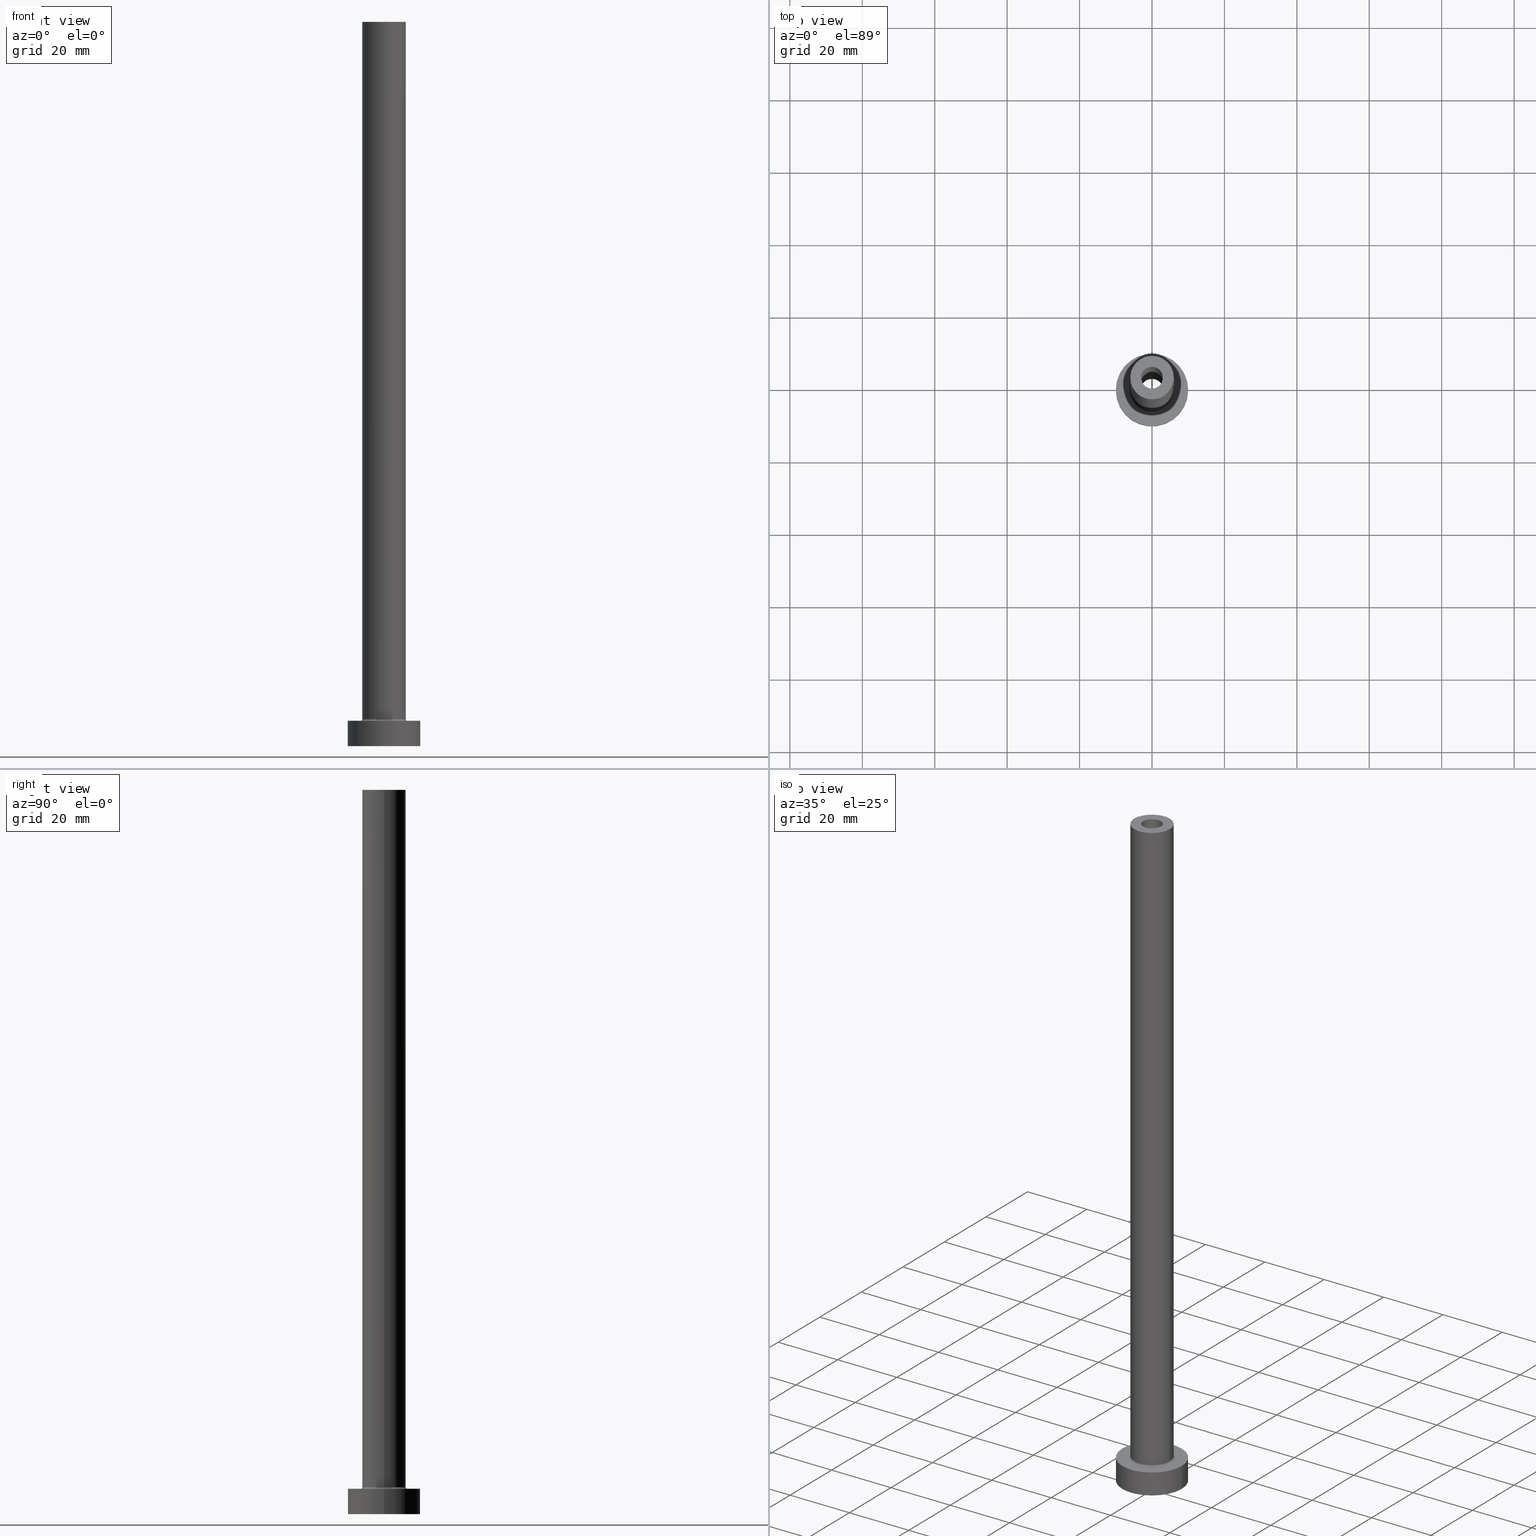
[diagram: canonical four-view strip — front | top / right | iso, engineering-drawing reading convention]
A machine part, canonical four-view strip (front | top / right | iso — engineering-drawing reading convention). The complete STEP part file that produces these views, byte-faithful:
ISO-10303-21;
HEADER;
FILE_DESCRIPTION (( 'STEP AP203' ),
    '1' );
FILE_NAME ('dcb5.STEP',
    '2023-02-13T15:01:46',
    ( '' ),
    ( '' ),
    'SwSTEP 2.0',
    'SolidWorks 2019',
    '' );
FILE_SCHEMA (( 'CONFIG_CONTROL_DESIGN' ));
ENDSEC;

DATA;
#1 = ORIENTED_EDGE ( 'NONE', *, *, #74, .T. ) ;
#2 = DIRECTION ( 'NONE',  ( 0.000000000000000000, 0.000000000000000000, 1.000000000000000000 ) ) ;
#3 = VERTEX_POINT ( 'NONE', #67 ) ;
#4 = CARTESIAN_POINT ( 'NONE',  ( 3.000000000000000444, 3.673940397442059868E-16, 200.0000000000000000 ) ) ;
#5 = EDGE_CURVE ( 'NONE', #3, #417, #295, .T. ) ;
#6 = AXIS2_PLACEMENT_3D ( 'NONE', #402, #233, #167 ) ;
#7 = CARTESIAN_POINT ( 'NONE',  ( 0.000000000000000000, 0.000000000000000000, 200.0000000000000000 ) ) ;
#8 = FACE_BOUND ( 'NONE', #240, .T. ) ;
#9 = ORIENTED_EDGE ( 'NONE', *, *, #163, .F. ) ;
#10 = COORDINATED_UNIVERSAL_TIME_OFFSET ( 1, 0, .AHEAD. ) ;
#11 = AXIS2_PLACEMENT_3D ( 'NONE', #328, #126, #219 ) ;
#12 = AXIS2_PLACEMENT_3D ( 'NONE', #168, #141, #275 ) ;
#13 = VERTEX_POINT ( 'NONE', #458 ) ;
#14 = DATE_AND_TIME ( #261, #288 ) ;
#15 = ORIENTED_EDGE ( 'NONE', *, *, #70, .F. ) ;
#16 = EDGE_LOOP ( 'NONE', ( #183, #306, #404, #1 ) ) ;
#17 = CARTESIAN_POINT ( 'NONE',  ( -10.00000000000000000, 0.000000000000000000, 7.000000000000000000 ) ) ;
#18 = PLANE ( 'NONE',  #160 ) ;
#19 = DIRECTION ( 'NONE',  ( 0.000000000000000000, 0.000000000000000000, -1.000000000000000000 ) ) ;
#20 = CALENDAR_DATE ( 2023, 13, 2 ) ;
#21 = ORIENTED_EDGE ( 'NONE', *, *, #386, .F. ) ;
#22 = CIRCLE ( 'NONE', #222, 3.150000000000000355 ) ;
#23 = LINE ( 'NONE', #29, #365 ) ;
#24 = ORIENTED_EDGE ( 'NONE', *, *, #237, .T. ) ;
#25 = DIRECTION ( 'NONE',  ( 0.000000000000000000, 0.000000000000000000, -1.000000000000000000 ) ) ;
#26 = CYLINDRICAL_SURFACE ( 'NONE', #28, 3.150000000000000355 ) ;
#27 = APPROVAL ( #403, 'NEUR�EN�' ) ;
#28 = AXIS2_PLACEMENT_3D ( 'NONE', #302, #25, #93 ) ;
#29 = CARTESIAN_POINT ( 'NONE',  ( -3.150000000000000355, 0.000000000000000000, 163.9095454429505594 ) ) ;
#30 = EDGE_LOOP ( 'NONE', ( #9, #121 ) ) ;
#31 = APPLICATION_PROTOCOL_DEFINITION ( 'international standard', 'config_control_design', 1994, #436 ) ;
#32 = DIRECTION ( 'NONE',  ( 0.000000000000000000, 0.000000000000000000, 1.000000000000000000 ) ) ;
#33 = CARTESIAN_POINT ( 'NONE',  ( 0.000000000000000000, 0.000000000000000000, 155.0000000000000284 ) ) ;
#34 = CC_DESIGN_DATE_AND_TIME_ASSIGNMENT ( #293, #94, ( #52 ) ) ;
#35 = CYLINDRICAL_SURFACE ( 'NONE', #409, 6.000000000000000888 ) ;
#36 = AXIS2_PLACEMENT_3D ( 'NONE', #455, #271, #238 ) ;
#37 = APPROVAL_PERSON_ORGANIZATION ( #438, #103, #229 ) ;
#38 = VERTEX_POINT ( 'NONE', #146 ) ;
#39 = CARTESIAN_POINT ( 'NONE',  ( 0.000000000000000000, 0.000000000000000000, 7.000000000000000000 ) ) ;
#40 = CYLINDRICAL_SURFACE ( 'NONE', #432, 6.000000000000000888 ) ;
#41 = LINE ( 'NONE', #128, #100 ) ;
#42 = CIRCLE ( 'NONE', #12, 6.500000000000000888 ) ;
#43 = CYLINDRICAL_SURFACE ( 'NONE', #389, 10.00000000000000000 ) ;
#44 = EDGE_LOOP ( 'NONE', ( #284, #213, #356, #210 ) ) ;
#45 = DIRECTION ( 'NONE',  ( 1.000000000000000000, 0.000000000000000000, -0.000000000000000000 ) ) ;
#46 = ORIENTED_EDGE ( 'NONE', *, *, #244, .F. ) ;
#47 = ORIENTED_EDGE ( 'NONE', *, *, #405, .T. ) ;
#48 = ADVANCED_FACE ( 'NONE', ( #206 ), #35, .T. ) ;
#49 = COORDINATED_UNIVERSAL_TIME_OFFSET ( 1, 0, .AHEAD. ) ;
#50 = VECTOR ( 'NONE', #369, 1000.000000000000000 ) ;
#51 = PERSON_AND_ORGANIZATION_ROLE ( 'design_supplier' ) ;
#52 = SECURITY_CLASSIFICATION ( '', '', #431 ) ;
#53 = ORIENTED_EDGE ( 'NONE', *, *, #145, .T. ) ;
#54 = PLANE ( 'NONE',  #199 ) ;
#55 = EDGE_LOOP ( 'NONE', ( #230, #24, #423, #416 ) ) ;
#56 = CARTESIAN_POINT ( 'NONE',  ( -3.150000000000000355, 0.000000000000000000, 0.000000000000000000 ) ) ;
#57 = COORDINATED_UNIVERSAL_TIME_OFFSET ( 1, 0, .AHEAD. ) ;
#58 = ORIENTED_EDGE ( 'NONE', *, *, #131, .T. ) ;
#59 = LINE ( 'NONE', #375, #397 ) ;
#60 = DIRECTION ( 'NONE',  ( 1.224646799147353207E-16, 1.000000000000000000, -0.000000000000000000 ) ) ;
#61 = ADVANCED_FACE ( 'NONE', ( #208, #425 ), #62, .F. ) ;
#62 = PLANE ( 'NONE',  #286 ) ;
#63 = CARTESIAN_POINT ( 'NONE',  ( 3.150000000000000355, 3.857637417314163182E-16, 0.000000000000000000 ) ) ;
#64 = CIRCLE ( 'NONE', #357, 6.000000000000000888 ) ;
#65 = CIRCLE ( 'NONE', #440, 6.500000000000000888 ) ;
#66 = CARTESIAN_POINT ( 'NONE',  ( 6.000000000000000888, 7.347880794884120722E-16, 200.0000000000000000 ) ) ;
#67 = CARTESIAN_POINT ( 'NONE',  ( 3.000000000000000444, 3.673940397442059868E-16, 155.0000000000000284 ) ) ;
#68 = CC_DESIGN_PERSON_AND_ORGANIZATION_ASSIGNMENT ( #137, #189, ( #399 ) ) ;
#69 = DIRECTION ( 'NONE',  ( 0.000000000000000000, 0.000000000000000000, -1.000000000000000000 ) ) ;
#70 = EDGE_CURVE ( 'NONE', #127, #3, #41, .T. ) ;
#71 = DIRECTION ( 'NONE',  ( 0.000000000000000000, 0.000000000000000000, -1.000000000000000000 ) ) ;
#72 = DIRECTION ( 'NONE',  ( -1.000000000000000000, 0.000000000000000000, 0.000000000000000000 ) ) ;
#73 = DIRECTION ( 'NONE',  ( -1.000000000000000000, 0.000000000000000000, 0.000000000000000000 ) ) ;
#74 = EDGE_CURVE ( 'NONE', #38, #81, #64, .T. ) ;
#75 = DIRECTION ( 'NONE',  ( 0.000000000000000000, 0.000000000000000000, -1.000000000000000000 ) ) ;
#76 = DIRECTION ( 'NONE',  ( -1.000000000000000000, 0.000000000000000000, 0.000000000000000000 ) ) ;
#77 = ORIENTED_EDGE ( 'NONE', *, *, #265, .F. ) ;
#78 = ADVANCED_FACE ( 'NONE', ( #323 ), #86, .T. ) ;
#79 = AXIS2_PLACEMENT_3D ( 'NONE', #268, #263, #99 ) ;
#80 = CARTESIAN_POINT ( 'NONE',  ( -6.000000000000000888, 0.000000000000000000, 200.0000000000000000 ) ) ;
#81 = VERTEX_POINT ( 'NONE', #257 ) ;
#82 = DIRECTION ( 'NONE',  ( 1.000000000000000000, 0.000000000000000000, 0.000000000000000000 ) ) ;
#83 = VERTEX_POINT ( 'NONE', #449 ) ;
#84 = APPROVAL_ROLE ( '' ) ;
#85 = ORIENTED_EDGE ( 'NONE', *, *, #170, .T. ) ;
#86 = CYLINDRICAL_SURFACE ( 'NONE', #353, 10.00000000000000000 ) ;
#87 = CALENDAR_DATE ( 2023, 13, 2 ) ;
#88 = EDGE_CURVE ( 'NONE', #81, #38, #132, .T. ) ;
#89 = CIRCLE ( 'NONE', #348, 3.000000000000000444 ) ;
#90 = LOCAL_TIME ( 16, 1, 46.00000000000000000, #395 ) ;
#91 = VERTEX_POINT ( 'NONE', #17 ) ;
#92 = DIRECTION ( 'NONE',  ( 1.000000000000000000, 0.000000000000000000, 0.000000000000000000 ) ) ;
#93 = DIRECTION ( 'NONE',  ( -1.000000000000000000, 0.000000000000000000, 0.000000000000000000 ) ) ;
#94 = DATE_TIME_ROLE ( 'classification_date' ) ;
#95 = CYLINDRICAL_SURFACE ( 'NONE', #332, 3.150000000000000355 ) ;
#96 = CALENDAR_DATE ( 2023, 13, 2 ) ;
#97 = VERTEX_POINT ( 'NONE', #441 ) ;
#98 = ORIENTED_EDGE ( 'NONE', *, *, #311, .T. ) ;
#99 = DIRECTION ( 'NONE',  ( 1.000000000000000000, 0.000000000000000000, 0.000000000000000000 ) ) ;
#100 = VECTOR ( 'NONE', #384, 1000.000000000000000 ) ;
#101 = CIRCLE ( 'NONE', #273, 10.00000000000000000 ) ;
#102 = CARTESIAN_POINT ( 'NONE',  ( 0.000000000000000000, 0.000000000000000000, 155.0000000000000284 ) ) ;
#103 = APPROVAL ( #338, 'NEUR�EN�' ) ;
#104 = ORIENTED_EDGE ( 'NONE', *, *, #195, .T. ) ;
#105 = CARTESIAN_POINT ( 'NONE',  ( 6.000000000000000888, 7.347880794884120722E-16, 200.0000000000000000 ) ) ;
#106 = DIRECTION ( 'NONE',  ( 0.000000000000000000, 0.000000000000000000, 1.000000000000000000 ) ) ;
#107 = CIRCLE ( 'NONE', #287, 0.5000000000000004441 ) ;
#108 = FACE_OUTER_BOUND ( 'NONE', #298, .T. ) ;
#109 = CC_DESIGN_APPROVAL ( #27, ( #334 ) ) ;
#110 = MECHANICAL_CONTEXT ( 'NONE', #436, 'mechanical' ) ;
#111 = EDGE_LOOP ( 'NONE', ( #299, #47 ) ) ;
#112 = ADVANCED_FACE ( 'NONE', ( #200, #290 ), #18, .T. ) ;
#113 = LOCAL_TIME ( 16, 1, 46.00000000000000000, #193 ) ;
#114 = CARTESIAN_POINT ( 'NONE',  ( -3.000000000000000444, 0.000000000000000000, 200.0000000000000000 ) ) ;
#115 = PRODUCT_DEFINITION ( 'NEZN�M�', '', #334, #157 ) ;
#116 = CARTESIAN_POINT ( 'NONE',  ( -6.000000000000000888, 0.000000000000000000, 200.0000000000000000 ) ) ;
#117 = DIRECTION ( 'NONE',  ( 1.000000000000000000, 0.000000000000000000, -0.000000000000000000 ) ) ;
#118 = CARTESIAN_POINT ( 'NONE',  ( 0.000000000000000000, 0.000000000000000000, 7.000000000000000000 ) ) ;
#119 = EDGE_CURVE ( 'NONE', #236, #253, #153, .T. ) ;
#120 = CARTESIAN_POINT ( 'NONE',  ( -10.00000000000000000, 0.000000000000000000, 0.000000000000000000 ) ) ;
#121 = ORIENTED_EDGE ( 'NONE', *, *, #143, .F. ) ;
#122 = AXIS2_PLACEMENT_3D ( 'NONE', #173, #192, #415 ) ;
#123 = LOCAL_TIME ( 16, 1, 46.00000000000000000, #49 ) ;
#124 = SHAPE_DEFINITION_REPRESENTATION ( #266, #437 ) ;
#125 = ORIENTED_EDGE ( 'NONE', *, *, #311, .F. ) ;
#126 = DIRECTION ( 'NONE',  ( 0.000000000000000000, 0.000000000000000000, 1.000000000000000000 ) ) ;
#127 = VERTEX_POINT ( 'NONE', #4 ) ;
#128 = CARTESIAN_POINT ( 'NONE',  ( 3.000000000000000444, 3.673940397442059868E-16, 200.0000000000000000 ) ) ;
#129 = CALENDAR_DATE ( 2023, 13, 2 ) ;
#130 = DIRECTION ( 'NONE',  ( 0.000000000000000000, 0.000000000000000000, 1.000000000000000000 ) ) ;
#131 = EDGE_CURVE ( 'NONE', #445, #187, #272, .T. ) ;
#132 = CIRCLE ( 'NONE', #179, 6.000000000000000888 ) ;
#133 = PERSON_AND_ORGANIZATION ( #312, #452 ) ;
#134 = CC_DESIGN_SECURITY_CLASSIFICATION ( #52, ( #334 ) ) ;
#135 = ORIENTED_EDGE ( 'NONE', *, *, #343, .T. ) ;
#136 = LINE ( 'NONE', #165, #50 ) ;
#137 = PERSON_AND_ORGANIZATION ( #312, #452 ) ;
#138 = DIRECTION ( 'NONE',  ( 1.000000000000000000, 0.000000000000000000, 0.000000000000000000 ) ) ;
#139 = ORIENTED_EDGE ( 'NONE', *, *, #5, .F. ) ;
#140 = CARTESIAN_POINT ( 'NONE',  ( 6.500000000000000888, 0.000000000000000000, 7.000000000000002665 ) ) ;
#141 = DIRECTION ( 'NONE',  ( -0.000000000000000000, -0.000000000000000000, -1.000000000000000000 ) ) ;
#142 = CARTESIAN_POINT ( 'NONE',  ( -6.500000000000000888, 7.960204194457796463E-16, 7.000000000000002665 ) ) ;
#143 = EDGE_CURVE ( 'NONE', #13, #387, #461, .T. ) ;
#144 = ORIENTED_EDGE ( 'NONE', *, *, #228, .F. ) ;
#145 = EDGE_CURVE ( 'NONE', #83, #417, #426, .T. ) ;
#146 = CARTESIAN_POINT ( 'NONE',  ( -6.000000000000000888, 0.000000000000000000, 7.500000000000007105 ) ) ;
#147 = ADVANCED_FACE ( 'NONE', ( #355 ), #40, .T. ) ;
#148 = CLOSED_SHELL ( 'NONE', ( #453, #349, #373, #147, #446, #78, #112, #61, #48, #292, #316, #327, #393, #443 ) ) ;
#149 = CIRCLE ( 'NONE', #36, 3.150000000000000355 ) ;
#150 = APPROVAL ( #363, 'NEUR�EN�' ) ;
#151 = ORIENTED_EDGE ( 'NONE', *, *, #88, .T. ) ;
#152 = DATE_TIME_ROLE ( 'creation_date' ) ;
#153 = CIRCLE ( 'NONE', #11, 3.150000000000000355 ) ;
#154 =( GEOMETRIC_REPRESENTATION_CONTEXT ( 3 ) GLOBAL_UNCERTAINTY_ASSIGNED_CONTEXT ( ( #303 ) ) GLOBAL_UNIT_ASSIGNED_CONTEXT ( ( #314, #380, #172 ) ) REPRESENTATION_CONTEXT ( 'NONE', 'WORKASPACE' ) );
#155 = ORIENTED_EDGE ( 'NONE', *, *, #163, .T. ) ;
#156 = DIRECTION ( 'NONE',  ( -0.000000000000000000, -0.000000000000000000, -1.000000000000000000 ) ) ;
#157 = DESIGN_CONTEXT ( 'detailed design', #231, 'design' ) ;
#158 = EDGE_LOOP ( 'NONE', ( #274, #225, #151, #281 ) ) ;
#159 = CARTESIAN_POINT ( 'NONE',  ( -6.500000000000000888, 7.960204194457796463E-16, 7.500000000000007105 ) ) ;
#160 = AXIS2_PLACEMENT_3D ( 'NONE', #39, #215, #45 ) ;
#161 = CIRCLE ( 'NONE', #305, 3.150000000000000355 ) ;
#162 = ORIENTED_EDGE ( 'NONE', *, *, #201, .T. ) ;
#163 = EDGE_CURVE ( 'NONE', #387, #13, #234, .T. ) ;
#164 = ORIENTED_EDGE ( 'NONE', *, *, #244, .T. ) ;
#165 = CARTESIAN_POINT ( 'NONE',  ( 10.00000000000000000, 1.224646799147353256E-15, 7.000000000000000000 ) ) ;
#166 = CC_DESIGN_PERSON_AND_ORGANIZATION_ASSIGNMENT ( #218, #51, ( #334 ) ) ;
#167 = DIRECTION ( 'NONE',  ( 1.000000000000000000, 0.000000000000000000, 0.000000000000000000 ) ) ;
#168 = CARTESIAN_POINT ( 'NONE',  ( 0.000000000000000000, 0.000000000000000000, 7.000000000000000000 ) ) ;
#169 = AXIS2_PLACEMENT_3D ( 'NONE', #300, #398, #296 ) ;
#170 = EDGE_CURVE ( 'NONE', #187, #445, #411, .T. ) ;
#171 = ORIENTED_EDGE ( 'NONE', *, *, #345, .T. ) ;
#172 =( NAMED_UNIT ( * ) SI_UNIT ( $, .STERADIAN. ) SOLID_ANGLE_UNIT ( ) );
#173 = CARTESIAN_POINT ( 'NONE',  ( 0.000000000000000000, 0.000000000000000000, 0.000000000000000000 ) ) ;
#174 = DIRECTION ( 'NONE',  ( -1.000000000000000000, 0.000000000000000000, 0.000000000000000000 ) ) ;
#175 = VECTOR ( 'NONE', #75, 1000.000000000000000 ) ;
#176 = CC_DESIGN_PERSON_AND_ORGANIZATION_ASSIGNMENT ( #133, #366, ( #334 ) ) ;
#177 = CARTESIAN_POINT ( 'NONE',  ( 0.000000000000000000, 0.000000000000000000, 200.0000000000000000 ) ) ;
#178 = CARTESIAN_POINT ( 'NONE',  ( 0.000000000000000000, 0.000000000000000000, 7.000000000000000000 ) ) ;
#179 = AXIS2_PLACEMENT_3D ( 'NONE', #413, #130, #92 ) ;
#180 = TOROIDAL_SURFACE ( 'NONE', #241, 6.500000000000000888, 0.5000000000000000000 ) ;
#181 = EDGE_CURVE ( 'NONE', #417, #3, #89, .T. ) ;
#182 = DIRECTION ( 'NONE',  ( 0.000000000000000000, 0.000000000000000000, -1.000000000000000000 ) ) ;
#183 = ORIENTED_EDGE ( 'NONE', *, *, #401, .F. ) ;
#184 = CARTESIAN_POINT ( 'NONE',  ( -3.000000000000000444, 0.000000000000000000, 155.0000000000000284 ) ) ;
#185 = DATE_AND_TIME ( #129, #322 ) ;
#186 = EDGE_CURVE ( 'NONE', #445, #38, #383, .T. ) ;
#187 = VERTEX_POINT ( 'NONE', #105 ) ;
#188 = DIRECTION ( 'NONE',  ( 0.000000000000000000, 0.000000000000000000, 1.000000000000000000 ) ) ;
#189 = PERSON_AND_ORGANIZATION_ROLE ( 'design_owner' ) ;
#190 = CARTESIAN_POINT ( 'NONE',  ( 3.150000000000000355, 3.857637417314163182E-16, 155.0000000000000284 ) ) ;
#191 = CC_DESIGN_PERSON_AND_ORGANIZATION_ASSIGNMENT ( #221, #259, ( #52 ) ) ;
#192 = DIRECTION ( 'NONE',  ( 0.000000000000000000, 0.000000000000000000, 1.000000000000000000 ) ) ;
#193 = COORDINATED_UNIVERSAL_TIME_OFFSET ( 1, 0, .AHEAD. ) ;
#194 = VERTEX_POINT ( 'NONE', #140 ) ;
#195 = EDGE_CURVE ( 'NONE', #194, #371, #65, .T. ) ;
#196 = DIRECTION ( 'NONE',  ( 0.000000000000000000, 0.000000000000000000, -1.000000000000000000 ) ) ;
#197 = DIRECTION ( 'NONE',  ( 1.000000000000000000, 0.000000000000000000, 0.000000000000000000 ) ) ;
#198 = DIRECTION ( 'NONE',  ( 0.000000000000000000, 0.000000000000000000, -1.000000000000000000 ) ) ;
#199 = AXIS2_PLACEMENT_3D ( 'NONE', #448, #340, #447 ) ;
#200 = FACE_BOUND ( 'NONE', #406, .T. ) ;
#201 = EDGE_CURVE ( 'NONE', #97, #13, #136, .T. ) ;
#202 = DIRECTION ( 'NONE',  ( 0.000000000000000000, 0.000000000000000000, 1.000000000000000000 ) ) ;
#203 = CARTESIAN_POINT ( 'NONE',  ( 0.000000000000000000, 0.000000000000000000, 155.0000000000000284 ) ) ;
#204 = CARTESIAN_POINT ( 'NONE',  ( 0.000000000000000000, 0.000000000000000000, 200.0000000000000000 ) ) ;
#205 = VERTEX_POINT ( 'NONE', #56 ) ;
#206 = FACE_OUTER_BOUND ( 'NONE', #16, .T. ) ;
#207 = DIRECTION ( 'NONE',  ( 1.000000000000000000, 0.000000000000000000, 0.000000000000000000 ) ) ;
#208 = FACE_BOUND ( 'NONE', #277, .T. ) ;
#209 = AXIS2_PLACEMENT_3D ( 'NONE', #379, #422, #459 ) ;
#210 = ORIENTED_EDGE ( 'NONE', *, *, #386, .T. ) ;
#211 = EDGE_CURVE ( 'NONE', #236, #205, #23, .T. ) ;
#212 = FACE_OUTER_BOUND ( 'NONE', #326, .T. ) ;
#213 = ORIENTED_EDGE ( 'NONE', *, *, #243, .T. ) ;
#214 = ORIENTED_EDGE ( 'NONE', *, *, #405, .F. ) ;
#215 = DIRECTION ( 'NONE',  ( 0.000000000000000000, 0.000000000000000000, 1.000000000000000000 ) ) ;
#216 = DIRECTION ( 'NONE',  ( 0.000000000000000000, 0.000000000000000000, 1.000000000000000000 ) ) ;
#217 = ORIENTED_EDGE ( 'NONE', *, *, #70, .T. ) ;
#218 = PERSON_AND_ORGANIZATION ( #312, #452 ) ;
#219 = DIRECTION ( 'NONE',  ( 1.000000000000000000, 0.000000000000000000, 0.000000000000000000 ) ) ;
#220 = CARTESIAN_POINT ( 'NONE',  ( 0.000000000000000000, 0.000000000000000000, 7.000000000000000000 ) ) ;
#221 = PERSON_AND_ORGANIZATION ( #312, #452 ) ;
#222 = AXIS2_PLACEMENT_3D ( 'NONE', #102, #235, #138 ) ;
#223 = PERSON_AND_ORGANIZATION ( #312, #452 ) ;
#224 = CARTESIAN_POINT ( 'NONE',  ( 0.000000000000000000, 0.000000000000000000, 7.500000000000007105 ) ) ;
#225 = ORIENTED_EDGE ( 'NONE', *, *, #401, .T. ) ;
#226 = EDGE_CURVE ( 'NONE', #249, #205, #149, .T. ) ;
#227 = FACE_OUTER_BOUND ( 'NONE', #44, .T. ) ;
#228 = EDGE_CURVE ( 'NONE', #38, #371, #107, .T. ) ;
#229 = APPROVAL_ROLE ( '' ) ;
#230 = ORIENTED_EDGE ( 'NONE', *, *, #119, .T. ) ;
#231 = APPLICATION_CONTEXT ( 'configuration controlled 3d designs of mechanical parts and assemblies' ) ;
#232 = ORIENTED_EDGE ( 'NONE', *, *, #5, .T. ) ;
#233 = DIRECTION ( 'NONE',  ( 0.000000000000000000, 0.000000000000000000, 1.000000000000000000 ) ) ;
#234 = CIRCLE ( 'NONE', #122, 10.00000000000000000 ) ;
#235 = DIRECTION ( 'NONE',  ( 0.000000000000000000, 0.000000000000000000, 1.000000000000000000 ) ) ;
#236 = VERTEX_POINT ( 'NONE', #304 ) ;
#237 = EDGE_CURVE ( 'NONE', #253, #249, #59, .T. ) ;
#238 = DIRECTION ( 'NONE',  ( 1.000000000000000000, 0.000000000000000000, 0.000000000000000000 ) ) ;
#239 = CYLINDRICAL_SURFACE ( 'NONE', #256, 3.000000000000000444 ) ;
#240 = EDGE_LOOP ( 'NONE', ( #267, #232 ) ) ;
#241 = AXIS2_PLACEMENT_3D ( 'NONE', #254, #202, #207 ) ;
#242 = CARTESIAN_POINT ( 'NONE',  ( 0.000000000000000000, 0.000000000000000000, 0.000000000000000000 ) ) ;
#243 = EDGE_CURVE ( 'NONE', #253, #236, #22, .T. ) ;
#244 = EDGE_CURVE ( 'NONE', #83, #127, #378, .T. ) ;
#245 = DIRECTION ( 'NONE',  ( -0.000000000000000000, -0.000000000000000000, -1.000000000000000000 ) ) ;
#246 = ORIENTED_EDGE ( 'NONE', *, *, #226, .F. ) ;
#247 = AXIS2_PLACEMENT_3D ( 'NONE', #33, #216, #320 ) ;
#248 = AXIS2_PLACEMENT_3D ( 'NONE', #224, #188, #197 ) ;
#249 = VERTEX_POINT ( 'NONE', #63 ) ;
#250 = CC_DESIGN_PERSON_AND_ORGANIZATION_ASSIGNMENT ( #223, #335, ( #115 ) ) ;
#251 = DIRECTION ( 'NONE',  ( 0.000000000000000000, 0.000000000000000000, 1.000000000000000000 ) ) ;
#252 = DIRECTION ( 'NONE',  ( -0.000000000000000000, -0.000000000000000000, -1.000000000000000000 ) ) ;
#253 = VERTEX_POINT ( 'NONE', #190 ) ;
#254 = CARTESIAN_POINT ( 'NONE',  ( 0.000000000000000000, 0.000000000000000000, 7.500000000000007105 ) ) ;
#255 = ORIENTED_EDGE ( 'NONE', *, *, #228, .T. ) ;
#256 = AXIS2_PLACEMENT_3D ( 'NONE', #7, #69, #174 ) ;
#257 = CARTESIAN_POINT ( 'NONE',  ( 6.000000000000000888, 7.347880794884120722E-16, 7.500000000000007105 ) ) ;
#258 = DIRECTION ( 'NONE',  ( 0.000000000000000000, 0.000000000000000000, 1.000000000000000000 ) ) ;
#259 = PERSON_AND_ORGANIZATION_ROLE ( 'classification_officer' ) ;
#260 = CC_DESIGN_DATE_AND_TIME_ASSIGNMENT ( #14, #152, ( #115 ) ) ;
#261 = CALENDAR_DATE ( 2023, 13, 2 ) ;
#262 = ORIENTED_EDGE ( 'NONE', *, *, #181, .F. ) ;
#263 = DIRECTION ( 'NONE',  ( 0.000000000000000000, 0.000000000000000000, 1.000000000000000000 ) ) ;
#264 = CIRCLE ( 'NONE', #6, 3.000000000000000444 ) ;
#265 = EDGE_CURVE ( 'NONE', #81, #194, #279, .T. ) ;
#266 = PRODUCT_DEFINITION_SHAPE ( 'NONE', 'NONE',  #115 ) ;
#267 = ORIENTED_EDGE ( 'NONE', *, *, #181, .T. ) ;
#268 = CARTESIAN_POINT ( 'NONE',  ( 0.000000000000000000, 0.000000000000000000, 7.000000000000000000 ) ) ;
#269 = PERSON_AND_ORGANIZATION ( #312, #452 ) ;
#270 = LINE ( 'NONE', #347, #427 ) ;
#271 = DIRECTION ( 'NONE',  ( -0.000000000000000000, -0.000000000000000000, -1.000000000000000000 ) ) ;
#272 = CIRCLE ( 'NONE', #331, 6.000000000000000888 ) ;
#273 = AXIS2_PLACEMENT_3D ( 'NONE', #118, #106, #385 ) ;
#274 = ORIENTED_EDGE ( 'NONE', *, *, #170, .F. ) ;
#275 = DIRECTION ( 'NONE',  ( 1.000000000000000000, 0.000000000000000000, 0.000000000000000000 ) ) ;
#276 = DIRECTION ( 'NONE',  ( -1.000000000000000000, 0.000000000000000000, 0.000000000000000000 ) ) ;
#277 = EDGE_LOOP ( 'NONE', ( #21, #246 ) ) ;
#278 = EDGE_LOOP ( 'NONE', ( #58, #85 ) ) ;
#279 = CIRCLE ( 'NONE', #297, 0.5000000000000004441 ) ;
#280 = DIRECTION ( 'NONE',  ( 0.000000000000000000, 0.000000000000000000, 1.000000000000000000 ) ) ;
#281 = ORIENTED_EDGE ( 'NONE', *, *, #186, .F. ) ;
#282 = VECTOR ( 'NONE', #368, 1000.000000000000000 ) ;
#283 = DIRECTION ( 'NONE',  ( 1.000000000000000000, 0.000000000000000000, 0.000000000000000000 ) ) ;
#284 = ORIENTED_EDGE ( 'NONE', *, *, #237, .F. ) ;
#285 = DATE_AND_TIME ( #87, #90 ) ;
#286 = AXIS2_PLACEMENT_3D ( 'NONE', #424, #354, #117 ) ;
#287 = AXIS2_PLACEMENT_3D ( 'NONE', #159, #60, #376 ) ;
#288 = LOCAL_TIME ( 16, 1, 46.00000000000000000, #10 ) ;
#289 = DIRECTION ( 'NONE',  ( 1.000000000000000000, 0.000000000000000000, 0.000000000000000000 ) ) ;
#290 = FACE_OUTER_BOUND ( 'NONE', #111, .T. ) ;
#291 = APPROVAL_DATE_TIME ( #392, #150 ) ;
#292 = ADVANCED_FACE ( 'NONE', ( #451, #337 ), #54, .T. ) ;
#293 = DATE_AND_TIME ( #20, #123 ) ;
#294 = ORIENTED_EDGE ( 'NONE', *, *, #145, .F. ) ;
#295 = CIRCLE ( 'NONE', #418, 3.000000000000000444 ) ;
#296 = DIRECTION ( 'NONE',  ( 1.000000000000000000, 0.000000000000000000, 0.000000000000000000 ) ) ;
#297 = AXIS2_PLACEMENT_3D ( 'NONE', #442, #410, #196 ) ;
#298 = EDGE_LOOP ( 'NONE', ( #214, #162, #342, #125 ) ) ;
#299 = ORIENTED_EDGE ( 'NONE', *, *, #324, .T. ) ;
#300 = CARTESIAN_POINT ( 'NONE',  ( 0.000000000000000000, 0.000000000000000000, 200.0000000000000000 ) ) ;
#301 = ORIENTED_EDGE ( 'NONE', *, *, #119, .F. ) ;
#302 = CARTESIAN_POINT ( 'NONE',  ( 0.000000000000000000, 0.000000000000000000, 163.9095454429505594 ) ) ;
#303 = UNCERTAINTY_MEASURE_WITH_UNIT (LENGTH_MEASURE( 1.000000000000000082E-05 ), #314, 'distance_accuracy_value', 'NONE');
#304 = CARTESIAN_POINT ( 'NONE',  ( -3.150000000000000355, 0.000000000000000000, 155.0000000000000284 ) ) ;
#305 = AXIS2_PLACEMENT_3D ( 'NONE', #242, #252, #283 ) ;
#306 = ORIENTED_EDGE ( 'NONE', *, *, #131, .F. ) ;
#307 = DIRECTION ( 'NONE',  ( -0.000000000000000000, -0.000000000000000000, -1.000000000000000000 ) ) ;
#308 = EDGE_LOOP ( 'NONE', ( #46, #454 ) ) ;
#309 = EDGE_LOOP ( 'NONE', ( #144, #360, #390, #319 ) ) ;
#310 = PLANE ( 'NONE',  #247 ) ;
#311 = EDGE_CURVE ( 'NONE', #91, #387, #270, .T. ) ;
#312 = PERSON ( 'NEUR�EN�', 'NEUR�EN�', 'NEUR�EN�', ('NEUR�EN�'), ('NEUR�EN�'), ('NEUR�EN�') ) ;
#313 = DIRECTION ( 'NONE',  ( 1.000000000000000000, 0.000000000000000000, 0.000000000000000000 ) ) ;
#314 =( LENGTH_UNIT ( ) NAMED_UNIT ( * ) SI_UNIT ( .MILLI., .METRE. ) );
#315 = CARTESIAN_POINT ( 'NONE',  ( 0.000000000000000000, 0.000000000000000000, 155.0000000000000284 ) ) ;
#316 = ADVANCED_FACE ( 'NONE', ( #407 ), #321, .F. ) ;
#317 = DIRECTION ( 'NONE',  ( -1.000000000000000000, 0.000000000000000000, 0.000000000000000000 ) ) ;
#318 = PRODUCT_RELATED_PRODUCT_CATEGORY ( 'detail', '', ( #399 ) ) ;
#319 = ORIENTED_EDGE ( 'NONE', *, *, #343, .F. ) ;
#320 = DIRECTION ( 'NONE',  ( 1.000000000000000000, 0.000000000000000000, -0.000000000000000000 ) ) ;
#321 = TOROIDAL_SURFACE ( 'NONE', #248, 6.500000000000000888, 0.5000000000000000000 ) ;
#322 = LOCAL_TIME ( 16, 1, 46.00000000000000000, #57 ) ;
#323 = FACE_OUTER_BOUND ( 'NONE', #377, .T. ) ;
#324 = EDGE_CURVE ( 'NONE', #91, #97, #359, .T. ) ;
#325 = FACE_OUTER_BOUND ( 'NONE', #456, .T. ) ;
#326 = EDGE_LOOP ( 'NONE', ( #301, #396 ) ) ;
#327 = ADVANCED_FACE ( 'NONE', ( #227 ), #26, .F. ) ;
#328 = CARTESIAN_POINT ( 'NONE',  ( 0.000000000000000000, 0.000000000000000000, 155.0000000000000284 ) ) ;
#329 = FACE_OUTER_BOUND ( 'NONE', #435, .T. ) ;
#330 = PERSON_AND_ORGANIZATION ( #312, #452 ) ;
#331 = AXIS2_PLACEMENT_3D ( 'NONE', #391, #364, #333 ) ;
#332 = AXIS2_PLACEMENT_3D ( 'NONE', #460, #71, #76 ) ;
#333 = DIRECTION ( 'NONE',  ( 1.000000000000000000, 0.000000000000000000, 0.000000000000000000 ) ) ;
#334 = PRODUCT_DEFINITION_FORMATION_WITH_SPECIFIED_SOURCE ( 'LIBOVOLN�', '', #399, .NOT_KNOWN. ) ;
#335 = PERSON_AND_ORGANIZATION_ROLE ( 'creator' ) ;
#336 = MANIFOLD_SOLID_BREP ( 'Odebrat vysunut�m4', #148 ) ;
#337 = FACE_OUTER_BOUND ( 'NONE', #278, .T. ) ;
#338 = APPROVAL_STATUS ( 'not_yet_approved' ) ;
#339 = EDGE_LOOP ( 'NONE', ( #15, #171, #53, #139 ) ) ;
#340 = DIRECTION ( 'NONE',  ( 0.000000000000000000, 0.000000000000000000, 1.000000000000000000 ) ) ;
#341 = AXIS2_PLACEMENT_3D ( 'NONE', #388, #182, #276 ) ;
#342 = ORIENTED_EDGE ( 'NONE', *, *, #143, .T. ) ;
#343 = EDGE_CURVE ( 'NONE', #371, #194, #42, .T. ) ;
#344 = DIRECTION ( 'NONE',  ( -0.000000000000000000, -0.000000000000000000, -1.000000000000000000 ) ) ;
#345 = EDGE_CURVE ( 'NONE', #127, #83, #264, .T. ) ;
#346 = CARTESIAN_POINT ( 'NONE',  ( 0.000000000000000000, 0.000000000000000000, 7.000000000000000000 ) ) ;
#347 = CARTESIAN_POINT ( 'NONE',  ( -10.00000000000000000, 0.000000000000000000, 7.000000000000000000 ) ) ;
#348 = AXIS2_PLACEMENT_3D ( 'NONE', #315, #2, #362 ) ;
#349 = ADVANCED_FACE ( 'NONE', ( #414 ), #95, .F. ) ;
#350 = DIRECTION ( 'NONE',  ( -0.000000000000000000, -0.000000000000000000, -1.000000000000000000 ) ) ;
#351 = CARTESIAN_POINT ( 'NONE',  ( 0.000000000000000000, 0.000000000000000000, 0.000000000000000000 ) ) ;
#352 = FACE_OUTER_BOUND ( 'NONE', #339, .T. ) ;
#353 = AXIS2_PLACEMENT_3D ( 'NONE', #220, #156, #73 ) ;
#354 = DIRECTION ( 'NONE',  ( 0.000000000000000000, 0.000000000000000000, 1.000000000000000000 ) ) ;
#355 = FACE_OUTER_BOUND ( 'NONE', #158, .T. ) ;
#356 = ORIENTED_EDGE ( 'NONE', *, *, #211, .T. ) ;
#357 = AXIS2_PLACEMENT_3D ( 'NONE', #394, #258, #289 ) ;
#358 = CYLINDRICAL_SURFACE ( 'NONE', #341, 3.000000000000000444 ) ;
#359 = CIRCLE ( 'NONE', #79, 10.00000000000000000 ) ;
#360 = ORIENTED_EDGE ( 'NONE', *, *, #88, .F. ) ;
#361 = DIRECTION ( 'NONE',  ( -1.000000000000000000, 0.000000000000000000, 0.000000000000000000 ) ) ;
#362 = DIRECTION ( 'NONE',  ( 1.000000000000000000, 0.000000000000000000, 0.000000000000000000 ) ) ;
#363 = APPROVAL_STATUS ( 'not_yet_approved' ) ;
#364 = DIRECTION ( 'NONE',  ( 0.000000000000000000, 0.000000000000000000, 1.000000000000000000 ) ) ;
#365 = VECTOR ( 'NONE', #19, 1000.000000000000000 ) ;
#366 = PERSON_AND_ORGANIZATION_ROLE ( 'creator' ) ;
#367 = ORIENTED_EDGE ( 'NONE', *, *, #324, .F. ) ;
#368 = DIRECTION ( 'NONE',  ( -0.000000000000000000, -0.000000000000000000, -1.000000000000000000 ) ) ;
#369 = DIRECTION ( 'NONE',  ( -0.000000000000000000, -0.000000000000000000, -1.000000000000000000 ) ) ;
#370 = APPLICATION_PROTOCOL_DEFINITION ( 'international standard', 'config_control_design', 1994, #231 ) ;
#371 = VERTEX_POINT ( 'NONE', #142 ) ;
#372 = DIRECTION ( 'NONE',  ( 1.000000000000000000, 0.000000000000000000, 0.000000000000000000 ) ) ;
#373 = ADVANCED_FACE ( 'NONE', ( #329 ), #180, .F. ) ;
#374 = AXIS2_PLACEMENT_3D ( 'NONE', #428, #251, #82 ) ;
#375 = CARTESIAN_POINT ( 'NONE',  ( 3.150000000000000355, 3.857637417314163182E-16, 163.9095454429505594 ) ) ;
#376 = DIRECTION ( 'NONE',  ( -1.000000000000000000, 1.224646799147351482E-16, 0.000000000000000000 ) ) ;
#377 = EDGE_LOOP ( 'NONE', ( #430, #367, #98, #155 ) ) ;
#378 = CIRCLE ( 'NONE', #169, 3.000000000000000444 ) ;
#379 = CARTESIAN_POINT ( 'NONE',  ( 0.000000000000000000, 0.000000000000000000, 200.0000000000000000 ) ) ;
#380 =( NAMED_UNIT ( * ) PLANE_ANGLE_UNIT ( ) SI_UNIT ( $, .RADIAN. ) );
#381 = DIRECTION ( 'NONE',  ( -0.000000000000000000, -0.000000000000000000, -1.000000000000000000 ) ) ;
#382 = AXIS2_PLACEMENT_3D ( 'NONE', #351, #280, #421 ) ;
#383 = LINE ( 'NONE', #116, #282 ) ;
#384 = DIRECTION ( 'NONE',  ( 0.000000000000000000, 0.000000000000000000, -1.000000000000000000 ) ) ;
#385 = DIRECTION ( 'NONE',  ( 1.000000000000000000, 0.000000000000000000, 0.000000000000000000 ) ) ;
#386 = EDGE_CURVE ( 'NONE', #205, #249, #161, .T. ) ;
#387 = VERTEX_POINT ( 'NONE', #120 ) ;
#388 = CARTESIAN_POINT ( 'NONE',  ( 0.000000000000000000, 0.000000000000000000, 200.0000000000000000 ) ) ;
#389 = AXIS2_PLACEMENT_3D ( 'NONE', #178, #245, #361 ) ;
#390 = ORIENTED_EDGE ( 'NONE', *, *, #265, .T. ) ;
#391 = CARTESIAN_POINT ( 'NONE',  ( 0.000000000000000000, 0.000000000000000000, 200.0000000000000000 ) ) ;
#392 = DATE_AND_TIME ( #96, #113 ) ;
#393 = ADVANCED_FACE ( 'NONE', ( #8, #212 ), #310, .F. ) ;
#394 = CARTESIAN_POINT ( 'NONE',  ( 0.000000000000000000, 0.000000000000000000, 7.500000000000007105 ) ) ;
#395 = COORDINATED_UNIVERSAL_TIME_OFFSET ( 1, 0, .AHEAD. ) ;
#396 = ORIENTED_EDGE ( 'NONE', *, *, #243, .F. ) ;
#397 = VECTOR ( 'NONE', #198, 1000.000000000000000 ) ;
#398 = DIRECTION ( 'NONE',  ( 0.000000000000000000, 0.000000000000000000, 1.000000000000000000 ) ) ;
#399 = PRODUCT ( 'dcb5', 'dcb5', '', ( #110 ) ) ;
#400 = APPROVAL_DATE_TIME ( #285, #27 ) ;
#401 = EDGE_CURVE ( 'NONE', #187, #81, #429, .T. ) ;
#402 = CARTESIAN_POINT ( 'NONE',  ( 0.000000000000000000, 0.000000000000000000, 200.0000000000000000 ) ) ;
#403 = APPROVAL_STATUS ( 'not_yet_approved' ) ;
#404 = ORIENTED_EDGE ( 'NONE', *, *, #186, .T. ) ;
#405 = EDGE_CURVE ( 'NONE', #97, #91, #101, .T. ) ;
#406 = EDGE_LOOP ( 'NONE', ( #104, #135 ) ) ;
#407 = FACE_OUTER_BOUND ( 'NONE', #309, .T. ) ;
#408 = ORIENTED_EDGE ( 'NONE', *, *, #195, .F. ) ;
#409 = AXIS2_PLACEMENT_3D ( 'NONE', #204, #381, #72 ) ;
#410 = DIRECTION ( 'NONE',  ( 0.000000000000000000, -1.000000000000000000, 0.000000000000000000 ) ) ;
#411 = CIRCLE ( 'NONE', #209, 6.000000000000000888 ) ;
#412 = CC_DESIGN_APPROVAL ( #103, ( #52 ) ) ;
#413 = CARTESIAN_POINT ( 'NONE',  ( 0.000000000000000000, 0.000000000000000000, 7.500000000000007105 ) ) ;
#414 = FACE_OUTER_BOUND ( 'NONE', #55, .T. ) ;
#415 = DIRECTION ( 'NONE',  ( 1.000000000000000000, 0.000000000000000000, 0.000000000000000000 ) ) ;
#416 = ORIENTED_EDGE ( 'NONE', *, *, #211, .F. ) ;
#417 = VERTEX_POINT ( 'NONE', #184 ) ;
#418 = AXIS2_PLACEMENT_3D ( 'NONE', #203, #32, #313 ) ;
#419 = VECTOR ( 'NONE', #457, 1000.000000000000000 ) ;
#420 = APPROVAL_PERSON_ORGANIZATION ( #330, #27, #84 ) ;
#421 = DIRECTION ( 'NONE',  ( 1.000000000000000000, 0.000000000000000000, 0.000000000000000000 ) ) ;
#422 = DIRECTION ( 'NONE',  ( 0.000000000000000000, 0.000000000000000000, 1.000000000000000000 ) ) ;
#423 = ORIENTED_EDGE ( 'NONE', *, *, #226, .T. ) ;
#424 = CARTESIAN_POINT ( 'NONE',  ( 0.000000000000000000, 0.000000000000000000, 0.000000000000000000 ) ) ;
#425 = FACE_OUTER_BOUND ( 'NONE', #30, .T. ) ;
#426 = LINE ( 'NONE', #114, #175 ) ;
#427 = VECTOR ( 'NONE', #344, 1000.000000000000000 ) ;
#428 = CARTESIAN_POINT ( 'NONE',  ( 0.000000000000000000, 0.000000000000000000, 0.000000000000000000 ) ) ;
#429 = LINE ( 'NONE', #66, #419 ) ;
#430 = ORIENTED_EDGE ( 'NONE', *, *, #201, .F. ) ;
#431 = SECURITY_CLASSIFICATION_LEVEL ( 'unclassified' ) ;
#432 = AXIS2_PLACEMENT_3D ( 'NONE', #177, #350, #317 ) ;
#433 = CC_DESIGN_APPROVAL ( #150, ( #115 ) ) ;
#434 = APPROVAL_ROLE ( '' ) ;
#435 = EDGE_LOOP ( 'NONE', ( #439, #255, #408, #77 ) ) ;
#436 = APPLICATION_CONTEXT ( 'configuration controlled 3d designs of mechanical parts and assemblies' ) ;
#437 = ADVANCED_BREP_SHAPE_REPRESENTATION ( 'dcb5', ( #336, #382 ), #154 ) ;
#438 = PERSON_AND_ORGANIZATION ( #312, #452 ) ;
#439 = ORIENTED_EDGE ( 'NONE', *, *, #74, .F. ) ;
#440 = AXIS2_PLACEMENT_3D ( 'NONE', #346, #307, #372 ) ;
#441 = CARTESIAN_POINT ( 'NONE',  ( 10.00000000000000000, 1.224646799147353256E-15, 7.000000000000000000 ) ) ;
#442 = CARTESIAN_POINT ( 'NONE',  ( 6.500000000000000888, 0.000000000000000000, 7.500000000000007105 ) ) ;
#443 = ADVANCED_FACE ( 'NONE', ( #352 ), #358, .F. ) ;
#444 = APPROVAL_DATE_TIME ( #185, #103 ) ;
#445 = VERTEX_POINT ( 'NONE', #80 ) ;
#446 = ADVANCED_FACE ( 'NONE', ( #108 ), #43, .T. ) ;
#447 = DIRECTION ( 'NONE',  ( 1.000000000000000000, 0.000000000000000000, -0.000000000000000000 ) ) ;
#448 = CARTESIAN_POINT ( 'NONE',  ( 0.000000000000000000, 0.000000000000000000, 200.0000000000000000 ) ) ;
#449 = CARTESIAN_POINT ( 'NONE',  ( -3.000000000000000444, 0.000000000000000000, 200.0000000000000000 ) ) ;
#450 = APPROVAL_PERSON_ORGANIZATION ( #269, #150, #434 ) ;
#451 = FACE_BOUND ( 'NONE', #308, .T. ) ;
#452 = ORGANIZATION ( 'NEUR�EN�', 'NEUR�EN�', '' ) ;
#453 = ADVANCED_FACE ( 'NONE', ( #325 ), #239, .F. ) ;
#454 = ORIENTED_EDGE ( 'NONE', *, *, #345, .F. ) ;
#455 = CARTESIAN_POINT ( 'NONE',  ( 0.000000000000000000, 0.000000000000000000, 0.000000000000000000 ) ) ;
#456 = EDGE_LOOP ( 'NONE', ( #164, #217, #262, #294 ) ) ;
#457 = DIRECTION ( 'NONE',  ( -0.000000000000000000, -0.000000000000000000, -1.000000000000000000 ) ) ;
#458 = CARTESIAN_POINT ( 'NONE',  ( 10.00000000000000000, 1.224646799147353256E-15, 0.000000000000000000 ) ) ;
#459 = DIRECTION ( 'NONE',  ( 1.000000000000000000, 0.000000000000000000, 0.000000000000000000 ) ) ;
#460 = CARTESIAN_POINT ( 'NONE',  ( 0.000000000000000000, 0.000000000000000000, 163.9095454429505594 ) ) ;
#461 = CIRCLE ( 'NONE', #374, 10.00000000000000000 ) ;
ENDSEC;
END-ISO-10303-21;
